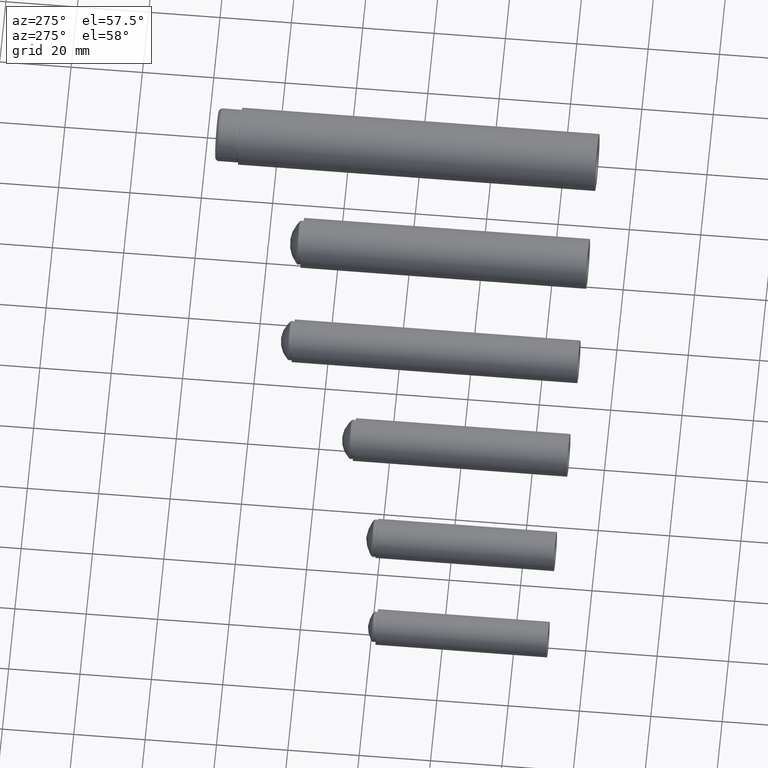
[diagram: clean part render]
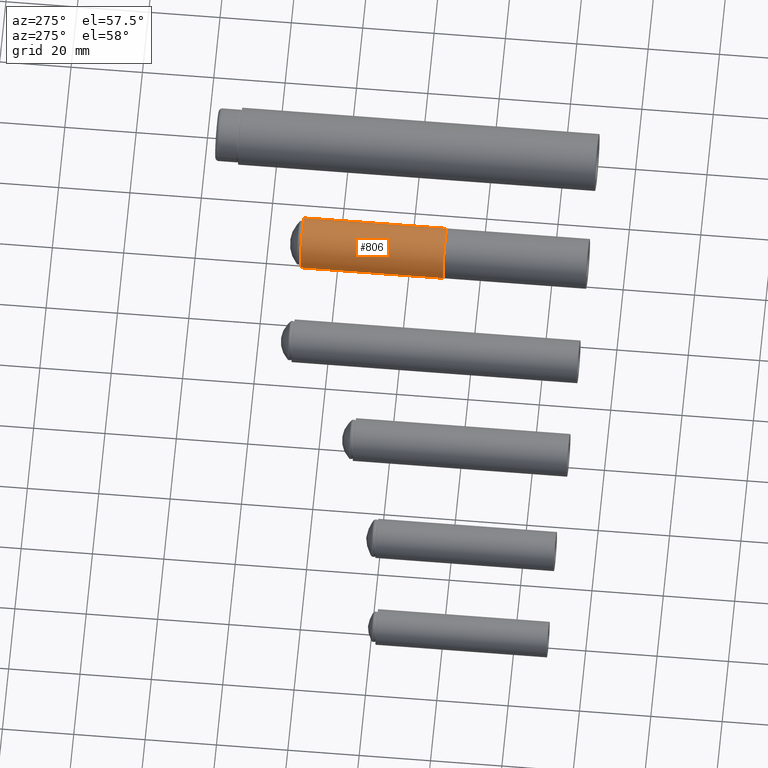
[diagram: same view with one face highlighted and labeled with its STEP entity id]
A machine part, auxiliary view. The second image highlights one B-rep face of the part: STEP entity #806.
In plain terms, the highlighted cylindrical surface (bore or boss wall) has radius 7 mm, axis along (0, 1, 0).
Its self-contained STEP definition (entity closure, byte-faithful):
#234=FACE_BOUND('',#400,.T.);
#296=FACE_OUTER_BOUND('',#399,.T.);
#399=EDGE_LOOP('',(#699));
#400=EDGE_LOOP('',(#700));
#479=CIRCLE('',#952,7.);
#480=CIRCLE('',#953,7.);
#539=VERTEX_POINT('',#1501);
#540=VERTEX_POINT('',#1503);
#599=EDGE_CURVE('',#539,#539,#479,.T.);
#600=EDGE_CURVE('',#540,#540,#480,.T.);
#699=ORIENTED_EDGE('',*,*,#599,.F.);
#700=ORIENTED_EDGE('',*,*,#600,.F.);
#754=CYLINDRICAL_SURFACE('',#951,7.);
#806=ADVANCED_FACE('',(#296,#234),#754,.T.);
#951=AXIS2_PLACEMENT_3D('',#1500,#1232,#1233);
#952=AXIS2_PLACEMENT_3D('',#1502,#1234,#1235);
#953=AXIS2_PLACEMENT_3D('',#1504,#1236,#1237);
#1232=DIRECTION('center_axis',(0.,0.,1.));
#1233=DIRECTION('ref_axis',(-1.,0.,0.));
#1234=DIRECTION('center_axis',(0.,0.,1.));
#1235=DIRECTION('ref_axis',(-1.,0.,0.));
#1236=DIRECTION('center_axis',(0.,0.,-1.));
#1237=DIRECTION('ref_axis',(-1.,0.,0.));
#1500=CARTESIAN_POINT('Origin',(0.,0.,0.));
#1501=CARTESIAN_POINT('',(7.,8.57252759403147E-16,40.));
#1502=CARTESIAN_POINT('Origin',(0.,0.,40.));
#1503=CARTESIAN_POINT('',(7.,8.57252759403147E-16,0.));
#1504=CARTESIAN_POINT('Origin',(0.,0.,0.));